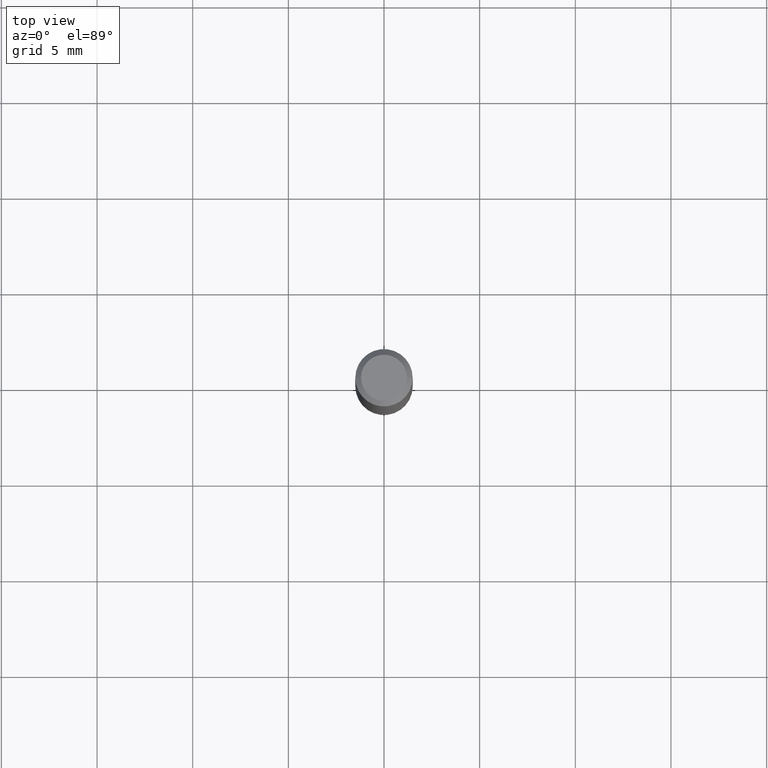
[diagram: clean part render]
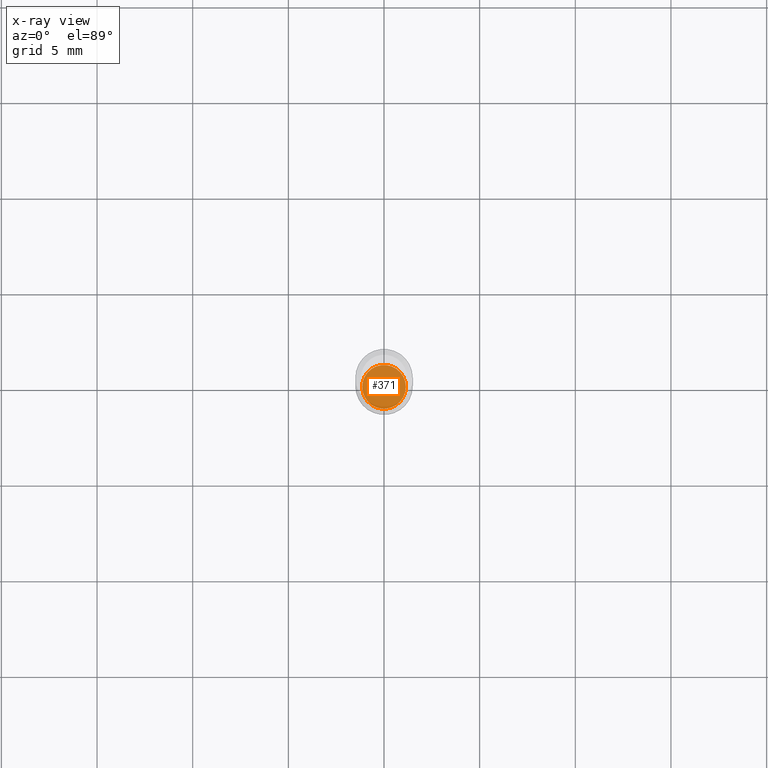
[diagram: x-ray — body ghosted, one internal face saturated and labeled with its STEP entity id]
A machine part, top view, then the same camera in x-ray: the body is ghosted and one INTERNAL B-rep face — a face not visible from any outside direction — is saturated and labeled: STEP entity #371.
In plain terms, the highlighted planar face has unit normal (-0, 0, 1).
Its self-contained STEP definition (entity closure, byte-faithful):
#26 = AXIS2_PLACEMENT_3D ( 'NONE', #395, #356, #134 ) ;
#61 = VERTEX_POINT ( 'NONE', #341 ) ;
#62 = ORIENTED_EDGE ( 'NONE', *, *, #222, .F. ) ;
#84 = AXIS2_PLACEMENT_3D ( 'NONE', #194, #377, #191 ) ;
#97 = EDGE_CURVE ( 'NONE', #293, #61, #256, .T. ) ;
#113 = ORIENTED_EDGE ( 'NONE', *, *, #97, .F. ) ;
#134 = DIRECTION ( 'NONE',  ( 1.000000000000000000, -6.982962677686271444E-15, 0.000000000000000000 ) ) ;
#144 = CARTESIAN_POINT ( 'NONE',  ( 2.676565608369631794E-29, -3.821426325363822773E-15, -1.094499999999999806 ) ) ;
#152 = CARTESIAN_POINT ( 'NONE',  ( -0.04494999999999999690, -3.499388138465546216E-15, -1.094499999999999806 ) ) ;
#191 = DIRECTION ( 'NONE',  ( 1.000000000000000000, -6.982962677686271444E-15, 0.000000000000000000 ) ) ;
#194 = CARTESIAN_POINT ( 'NONE',  ( 2.676565608369631794E-29, -3.821426325363822773E-15, -1.094499999999999806 ) ) ;
#222 = EDGE_CURVE ( 'NONE', #61, #293, #223, .T. ) ;
#223 = CIRCLE ( 'NONE', #26, 0.04494999999999999690 ) ;
#250 = PLANE ( 'NONE',  #482 ) ;
#256 = CIRCLE ( 'NONE', #84, 0.04494999999999999690 ) ;
#293 = VERTEX_POINT ( 'NONE', #152 ) ;
#299 = DIRECTION ( 'NONE',  ( -2.438088387897960049E-29, 3.491481338843145188E-15, 1.000000000000000000 ) ) ;
#341 = CARTESIAN_POINT ( 'NONE',  ( 0.04494999999999999690, -4.135310497725820159E-15, -1.094499999999999806 ) ) ;
#356 = DIRECTION ( 'NONE',  ( -2.445468806185136597E-29, 3.491481338843145583E-15, 1.000000000000000000 ) ) ;
#366 = DIRECTION ( 'NONE',  ( 1.000000000000000000, -6.982962677686265922E-15, 4.876176775795935793E-29 ) ) ;
#371 = ADVANCED_FACE ( 'NONE', ( #448 ), #250, .F. ) ;
#377 = DIRECTION ( 'NONE',  ( -2.445468806185136597E-29, 3.491481338843145583E-15, 1.000000000000000000 ) ) ;
#395 = CARTESIAN_POINT ( 'NONE',  ( 2.676565608369631794E-29, -3.821426325363822773E-15, -1.094499999999999806 ) ) ;
#435 = EDGE_LOOP ( 'NONE', ( #62, #113 ) ) ;
#448 = FACE_OUTER_BOUND ( 'NONE', #435, .T. ) ;
#482 = AXIS2_PLACEMENT_3D ( 'NONE', #144, #299, #366 ) ;